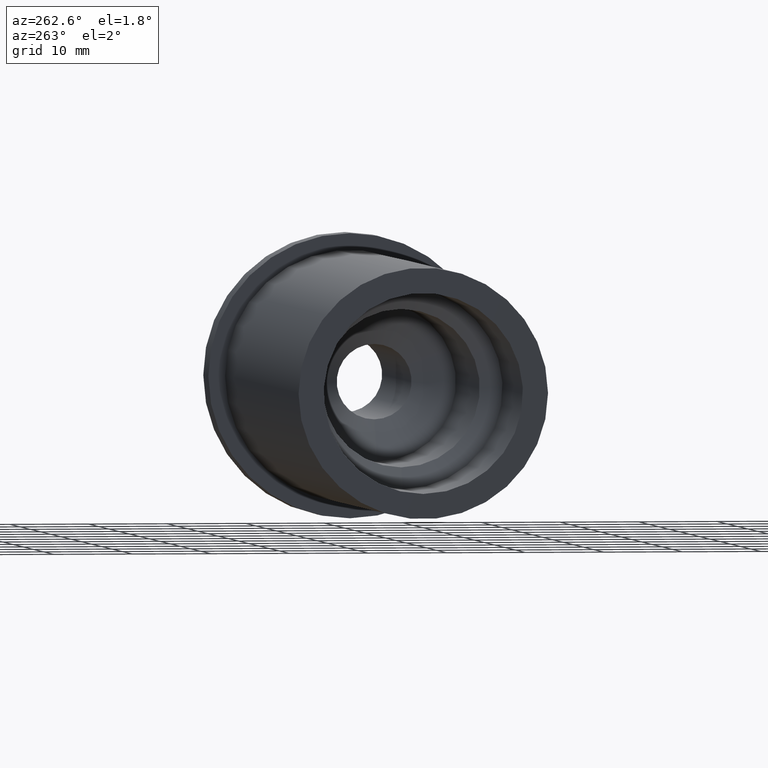
[diagram: clean part render]
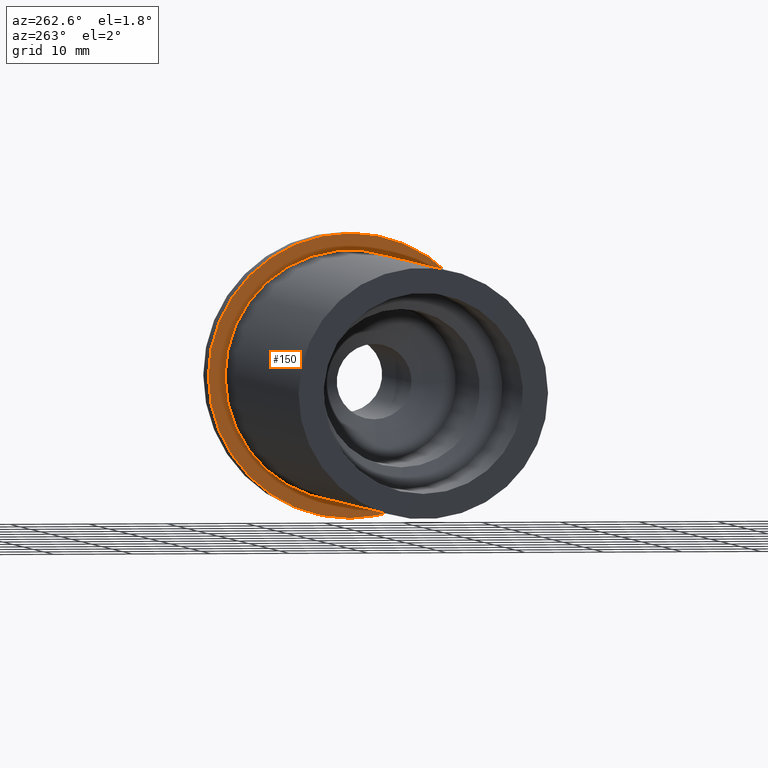
[diagram: same view with one face highlighted and labeled with its STEP entity id]
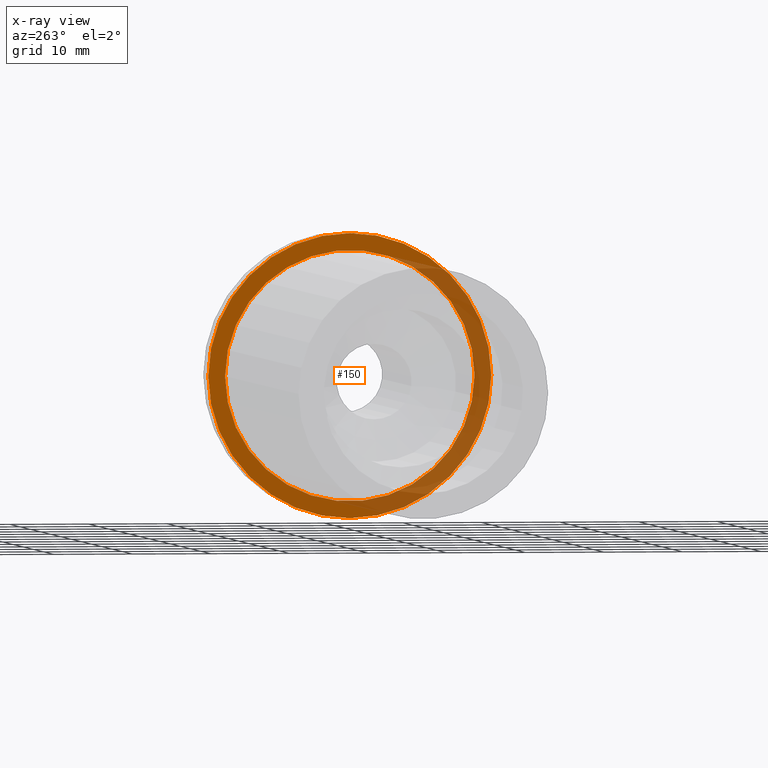
[diagram: x-ray of the same camera — body ghosted, the highlighted face saturated]
A machine part, auxiliary view. The second image highlights one B-rep face of the part: STEP entity #150.
The next image is the same camera in x-ray: the body ghosted, the highlighted face saturated — about 39% of this face is hidden behind the body in this view.
In plain terms, the highlighted planar face has unit normal (-1, 0, 0).
Its self-contained STEP definition (entity closure, byte-faithful):
#17=FACE_BOUND('',#45,.T.);
#20=PLANE('',#194);
#32=FACE_OUTER_BOUND('',#44,.T.);
#44=EDGE_LOOP('',(#134));
#45=EDGE_LOOP('',(#135));
#68=CIRCLE('',#188,18.);
#70=CIRCLE('',#193,15.8750000000001);
#79=VERTEX_POINT('',#274);
#81=VERTEX_POINT('',#282);
#96=EDGE_CURVE('',#79,#79,#68,.T.);
#98=EDGE_CURVE('',#81,#81,#70,.T.);
#134=ORIENTED_EDGE('',*,*,#96,.F.);
#135=ORIENTED_EDGE('',*,*,#98,.T.);
#150=ADVANCED_FACE('',(#32,#17),#20,.T.);
#188=AXIS2_PLACEMENT_3D('',#276,#231,#232);
#193=AXIS2_PLACEMENT_3D('',#283,#241,#242);
#194=AXIS2_PLACEMENT_3D('',#285,#244,#245);
#231=DIRECTION('center_axis',(1.,0.,0.));
#232=DIRECTION('ref_axis',(0.,0.,-1.));
#241=DIRECTION('center_axis',(1.,0.,0.));
#242=DIRECTION('ref_axis',(0.,0.,-1.));
#244=DIRECTION('center_axis',(-1.,0.,0.));
#245=DIRECTION('ref_axis',(0.,0.,1.));
#274=CARTESIAN_POINT('',(-4.99999999999999,-18.,-2.20436423846524E-15));
#276=CARTESIAN_POINT('Origin',(-4.99999999999999,0.,0.));
#282=CARTESIAN_POINT('',(-5.,-15.8750000000001,-1.94412679364643E-15));
#283=CARTESIAN_POINT('Origin',(-5.,0.,0.));
#285=CARTESIAN_POINT('Origin',(-4.99999999999999,18.,0.));